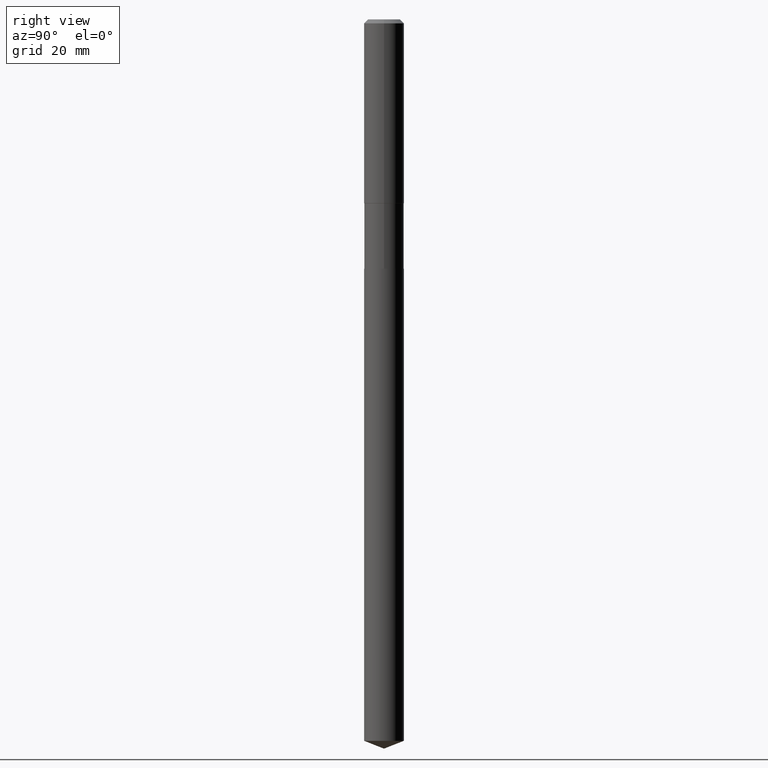
[diagram: clean part render]
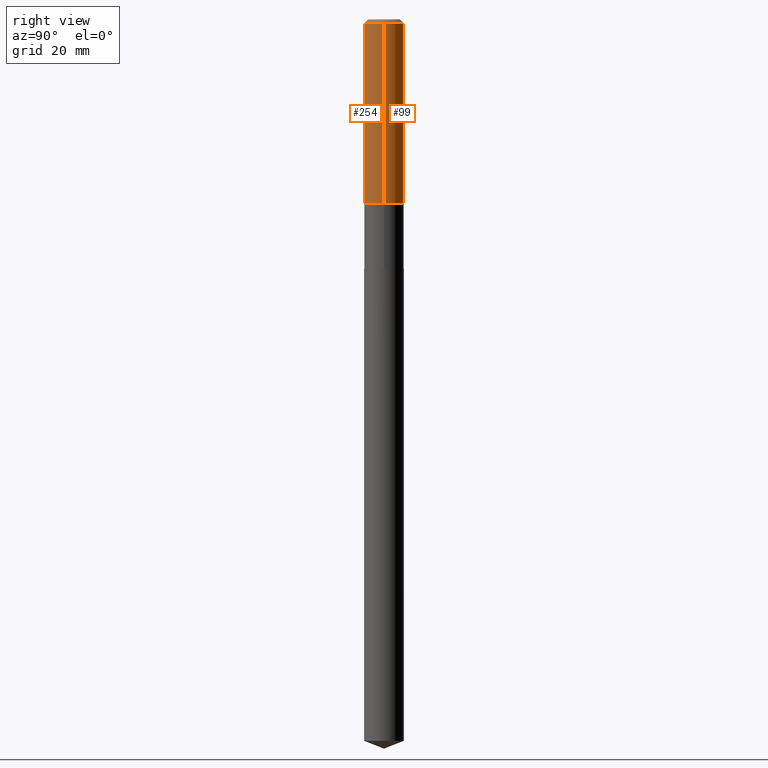
[diagram: same view with one multi-face feature highlighted, each face labeled with its STEP entity id]
A machine part, right view. The highlighted faces form ONE feature: a constant-radius fillet chain: 2 tangent blend faces with common blend radius 4.0005 mm. The faces share edges in the B-rep.
Their STEP definitions:
[1] entity #99 (Cylinder):
#2 = AXIS2_PLACEMENT_3D ( 'NONE', #156, #454, #377 ) ;
#34 = AXIS2_PLACEMENT_3D ( 'NONE', #84, #297, #269 ) ;
#35 = FACE_OUTER_BOUND ( 'NONE', #460, .T. ) ;
#54 = EDGE_CURVE ( 'NONE', #174, #125, #258, .T. ) ;
#77 = CARTESIAN_POINT ( 'NONE',  ( -0.1575000000000001676, -3.936036447621889468E-15, -1.447849999999999859 ) ) ;
#84 = CARTESIAN_POINT ( 'NONE',  ( 3.540672011035149467E-29, -5.055141256444048649E-15, -1.447849999999999859 ) ) ;
#99 = ADVANCED_FACE ( 'NONE', ( #35 ), #164, .T. ) ;
#116 = AXIS2_PLACEMENT_3D ( 'NONE', #261, #362, #224 ) ;
#124 = CARTESIAN_POINT ( 'NONE',  ( 0.1575000000000000011, -1.209798283909146741E-15, -0.03150000000000019451 ) ) ;
#125 = VERTEX_POINT ( 'NONE', #415 ) ;
#127 = CIRCLE ( 'NONE', #34, 0.1575000000000001676 ) ;
#128 = CARTESIAN_POINT ( 'NONE',  ( 0.1575000000000000844, -1.099816621735587677E-15, 7.679978421878603638E-30 ) ) ;
#153 = CARTESIAN_POINT ( 'NONE',  ( 0.1575000000000001676, -6.154957878179636918E-15, -1.447849999999999859 ) ) ;
#156 = CARTESIAN_POINT ( 'NONE',  ( 0.000000000000000000, 0.000000000000000000, 0.000000000000000000 ) ) ;
#164 = CYLINDRICAL_SURFACE ( 'NONE', #2, 0.1575000000000000844 ) ;
#174 = VERTEX_POINT ( 'NONE', #77 ) ;
#205 = VERTEX_POINT ( 'NONE', #124 ) ;
#222 = CIRCLE ( 'NONE', #116, 0.1575000000000000011 ) ;
#224 = DIRECTION ( 'NONE',  ( 1.000000000000000000, -6.982962677686265922E-15, 0.000000000000000000 ) ) ;
#225 = EDGE_CURVE ( 'NONE', #461, #174, #127, .T. ) ;
#242 = ORIENTED_EDGE ( 'NONE', *, *, #225, .T. ) ;
#258 = LINE ( 'NONE', #448, #300 ) ;
#260 = EDGE_CURVE ( 'NONE', #461, #205, #306, .T. ) ;
#261 = CARTESIAN_POINT ( 'NONE',  ( 7.703226739483226971E-31, -1.099816621735597538E-16, -0.03150000000000019451 ) ) ;
#269 = DIRECTION ( 'NONE',  ( 1.000000000000000000, -6.982962677686267499E-15, 0.000000000000000000 ) ) ;
#297 = DIRECTION ( 'NONE',  ( -2.445468806185136597E-29, 3.491481338843145583E-15, 1.000000000000000000 ) ) ;
#300 = VECTOR ( 'NONE', #482, 39.37007874015748143 ) ;
#306 = LINE ( 'NONE', #128, #345 ) ;
#323 = ORIENTED_EDGE ( 'NONE', *, *, #54, .T. ) ;
#337 = ORIENTED_EDGE ( 'NONE', *, *, #260, .F. ) ;
#345 = VECTOR ( 'NONE', #426, 39.37007874015748143 ) ;
#362 = DIRECTION ( 'NONE',  ( -2.445468806185136597E-29, 3.491481338843145583E-15, 1.000000000000000000 ) ) ;
#377 = DIRECTION ( 'NONE',  ( 1.000000000000000000, -6.982962677686267499E-15, 4.876176775795936353E-29 ) ) ;
#382 = ORIENTED_EDGE ( 'NONE', *, *, #393, .F. ) ;
#393 = EDGE_CURVE ( 'NONE', #205, #125, #222, .T. ) ;
#415 = CARTESIAN_POINT ( 'NONE',  ( -0.1575000000000000011, -1.463456650486645464E-15, -0.03150000000000019451 ) ) ;
#426 = DIRECTION ( 'NONE',  ( -2.445468806185136877E-29, 3.491481338843145188E-15, 1.000000000000000000 ) ) ;
#448 = CARTESIAN_POINT ( 'NONE',  ( -0.1575000000000000844, 1.119104808822158392E-15, -7.747322767151481189E-30 ) ) ;
#454 = DIRECTION ( 'NONE',  ( -2.445468806185136597E-29, 3.491481338843145583E-15, 1.000000000000000000 ) ) ;
#460 = EDGE_LOOP ( 'NONE', ( #242, #323, #382, #337 ) ) ;
#461 = VERTEX_POINT ( 'NONE', #153 ) ;
#482 = DIRECTION ( 'NONE',  ( -2.445468806185136877E-29, 3.491481338843145188E-15, 1.000000000000000000 ) ) ;
[2] entity #254 (Cylinder):
#47 = ORIENTED_EDGE ( 'NONE', *, *, #173, .F. ) ;
#54 = EDGE_CURVE ( 'NONE', #174, #125, #258, .T. ) ;
#62 = CIRCLE ( 'NONE', #135, 0.1575000000000000011 ) ;
#77 = CARTESIAN_POINT ( 'NONE',  ( -0.1575000000000001676, -3.936036447621889468E-15, -1.447849999999999859 ) ) ;
#78 = DIRECTION ( 'NONE',  ( -2.445468806185136597E-29, 3.491481338843145583E-15, 1.000000000000000000 ) ) ;
#89 = CIRCLE ( 'NONE', #357, 0.1575000000000001676 ) ;
#121 = CARTESIAN_POINT ( 'NONE',  ( 7.703226739483226971E-31, -1.099816621735597538E-16, -0.03150000000000019451 ) ) ;
#124 = CARTESIAN_POINT ( 'NONE',  ( 0.1575000000000000011, -1.209798283909146741E-15, -0.03150000000000019451 ) ) ;
#125 = VERTEX_POINT ( 'NONE', #415 ) ;
#128 = CARTESIAN_POINT ( 'NONE',  ( 0.1575000000000000844, -1.099816621735587677E-15, 7.679978421878603638E-30 ) ) ;
#135 = AXIS2_PLACEMENT_3D ( 'NONE', #121, #78, #490 ) ;
#153 = CARTESIAN_POINT ( 'NONE',  ( 0.1575000000000001676, -6.154957878179636918E-15, -1.447849999999999859 ) ) ;
#169 = ORIENTED_EDGE ( 'NONE', *, *, #445, .T. ) ;
#170 = DIRECTION ( 'NONE',  ( -2.445468806185136597E-29, 3.491481338843145583E-15, 1.000000000000000000 ) ) ;
#173 = EDGE_CURVE ( 'NONE', #125, #205, #62, .T. ) ;
#174 = VERTEX_POINT ( 'NONE', #77 ) ;
#197 = EDGE_LOOP ( 'NONE', ( #236, #169, #207, #47 ) ) ;
#205 = VERTEX_POINT ( 'NONE', #124 ) ;
#207 = ORIENTED_EDGE ( 'NONE', *, *, #260, .T. ) ;
#220 = DIRECTION ( 'NONE',  ( -2.445468806185136597E-29, 3.491481338843145583E-15, 1.000000000000000000 ) ) ;
#233 = CYLINDRICAL_SURFACE ( 'NONE', #411, 0.1575000000000000844 ) ;
#236 = ORIENTED_EDGE ( 'NONE', *, *, #54, .F. ) ;
#254 = ADVANCED_FACE ( 'NONE', ( #420 ), #233, .T. ) ;
#258 = LINE ( 'NONE', #448, #300 ) ;
#260 = EDGE_CURVE ( 'NONE', #461, #205, #306, .T. ) ;
#300 = VECTOR ( 'NONE', #482, 39.37007874015748143 ) ;
#306 = LINE ( 'NONE', #128, #345 ) ;
#309 = DIRECTION ( 'NONE',  ( 1.000000000000000000, -6.982962677686267499E-15, 4.876176775795936353E-29 ) ) ;
#345 = VECTOR ( 'NONE', #426, 39.37007874015748143 ) ;
#357 = AXIS2_PLACEMENT_3D ( 'NONE', #437, #220, #444 ) ;
#380 = CARTESIAN_POINT ( 'NONE',  ( 0.000000000000000000, 0.000000000000000000, 0.000000000000000000 ) ) ;
#411 = AXIS2_PLACEMENT_3D ( 'NONE', #380, #170, #309 ) ;
#415 = CARTESIAN_POINT ( 'NONE',  ( -0.1575000000000000011, -1.463456650486645464E-15, -0.03150000000000019451 ) ) ;
#420 = FACE_OUTER_BOUND ( 'NONE', #197, .T. ) ;
#426 = DIRECTION ( 'NONE',  ( -2.445468806185136877E-29, 3.491481338843145188E-15, 1.000000000000000000 ) ) ;
#437 = CARTESIAN_POINT ( 'NONE',  ( 3.540672011035149467E-29, -5.055141256444048649E-15, -1.447849999999999859 ) ) ;
#444 = DIRECTION ( 'NONE',  ( 1.000000000000000000, -6.982962677686267499E-15, 0.000000000000000000 ) ) ;
#445 = EDGE_CURVE ( 'NONE', #174, #461, #89, .T. ) ;
#448 = CARTESIAN_POINT ( 'NONE',  ( -0.1575000000000000844, 1.119104808822158392E-15, -7.747322767151481189E-30 ) ) ;
#461 = VERTEX_POINT ( 'NONE', #153 ) ;
#482 = DIRECTION ( 'NONE',  ( -2.445468806185136877E-29, 3.491481338843145188E-15, 1.000000000000000000 ) ) ;
#490 = DIRECTION ( 'NONE',  ( 1.000000000000000000, -6.982962677686265922E-15, 0.000000000000000000 ) ) ;